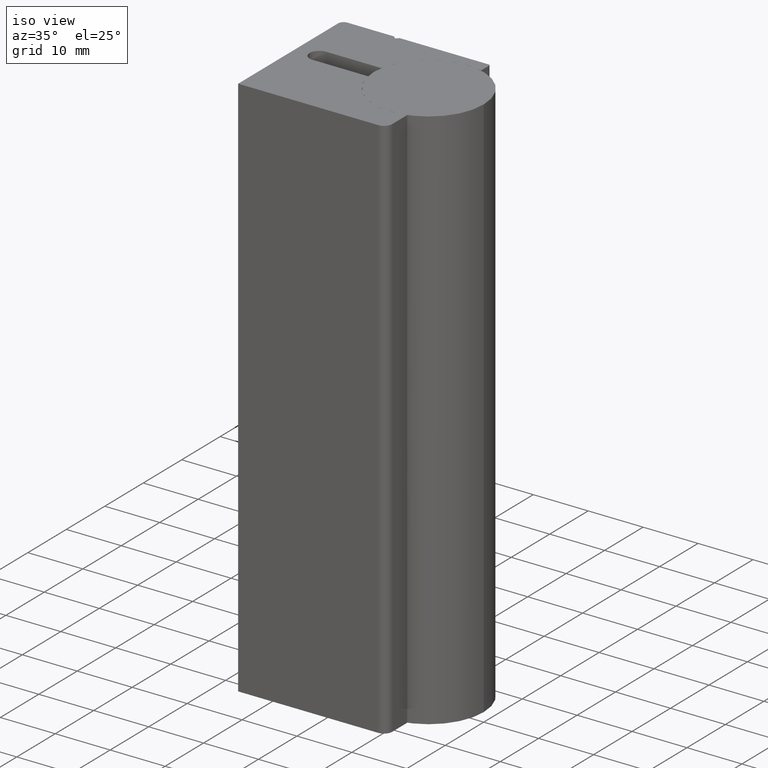
[diagram: clean part render]
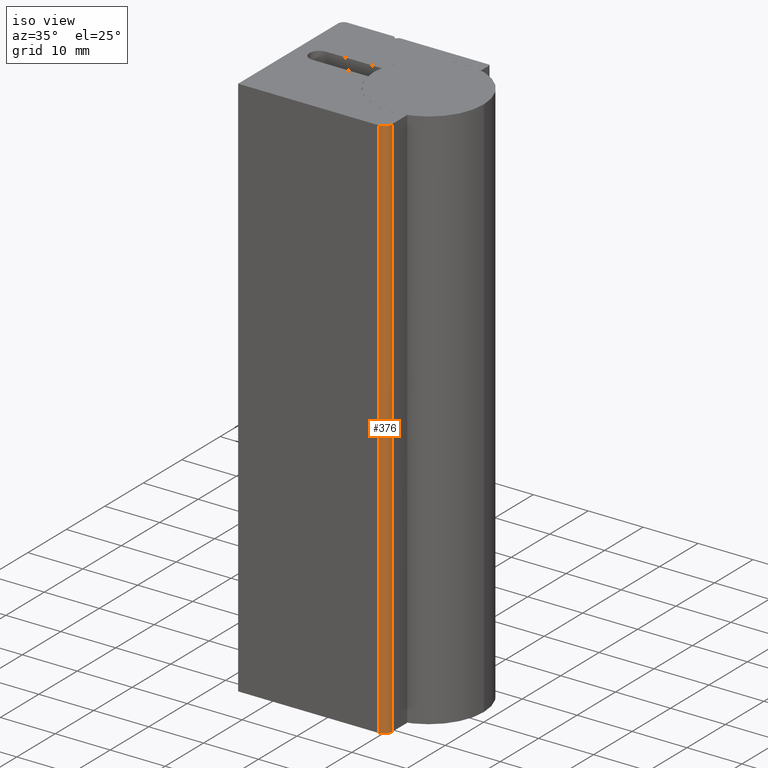
[diagram: same view with one face highlighted and labeled with its STEP entity id]
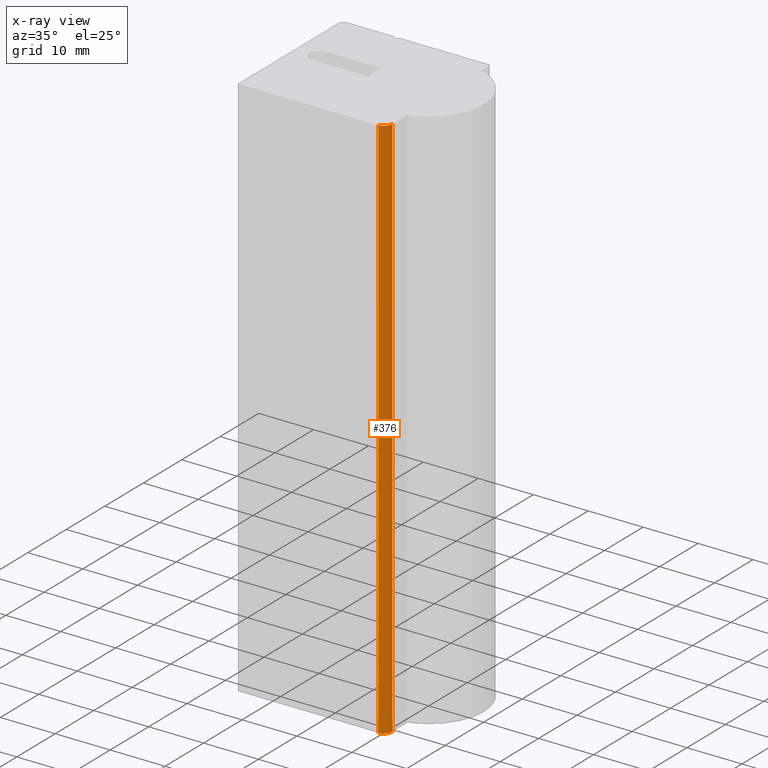
[diagram: x-ray of the same camera — body ghosted, the highlighted face saturated]
A machine part, iso view. The second image highlights one B-rep face of the part: STEP entity #376.
The next image is the same camera in x-ray: the body ghosted, the highlighted face saturated — about 0% of this face is hidden behind the body in this view.
In plain terms, the highlighted cylindrical surface (edge-blend (fillet) strip) has radius 1.5 mm, axis along (0, 0, 1).
Its self-contained STEP definition (entity closure, byte-faithful):
#35=CIRCLE('',#472,1.5);
#36=CIRCLE('',#473,1.5);
#45=CYLINDRICAL_SURFACE('',#471,1.5);
#59=FACE_OUTER_BOUND('',#80,.T.);
#80=EDGE_LOOP('',(#293,#294,#295,#296));
#115=LINE('',#677,#152);
#116=LINE('',#683,#153);
#152=VECTOR('',#557,10.);
#153=VECTOR('',#564,10.);
#186=VERTEX_POINT('',#673);
#187=VERTEX_POINT('',#675);
#188=VERTEX_POINT('',#679);
#189=VERTEX_POINT('',#681);
#231=EDGE_CURVE('',#186,#187,#115,.T.);
#232=EDGE_CURVE('',#188,#186,#35,.T.);
#233=EDGE_CURVE('',#189,#187,#36,.T.);
#234=EDGE_CURVE('',#188,#189,#116,.T.);
#293=ORIENTED_EDGE('',*,*,#232,.T.);
#294=ORIENTED_EDGE('',*,*,#231,.T.);
#295=ORIENTED_EDGE('',*,*,#233,.F.);
#296=ORIENTED_EDGE('',*,*,#234,.F.);
#376=ADVANCED_FACE('',(#59),#45,.T.);
#471=AXIS2_PLACEMENT_3D('',#678,#558,#559);
#472=AXIS2_PLACEMENT_3D('',#680,#560,#561);
#473=AXIS2_PLACEMENT_3D('',#682,#562,#563);
#557=DIRECTION('',(0.,0.,1.));
#558=DIRECTION('center_axis',(0.,0.,1.));
#559=DIRECTION('ref_axis',(2.03540887847946E-15,-1.,0.));
#560=DIRECTION('center_axis',(0.,0.,1.));
#561=DIRECTION('ref_axis',(2.03540887847946E-15,-1.,0.));
#562=DIRECTION('center_axis',(0.,0.,1.));
#563=DIRECTION('ref_axis',(2.03540887847946E-15,-1.,0.));
#564=DIRECTION('',(0.,0.,1.));
#673=CARTESIAN_POINT('',(2.80000000009254,-13.4999999999731,0.));
#675=CARTESIAN_POINT('',(2.80000000009254,-13.4999999999731,100.));
#677=CARTESIAN_POINT('',(2.80000000009254,-13.4999999999731,0.));
#678=CARTESIAN_POINT('Origin',(1.30000000009254,-13.4999999999731,0.));
#679=CARTESIAN_POINT('',(1.30000000009255,-14.9999999999731,0.));
#680=CARTESIAN_POINT('Origin',(1.30000000009254,-13.4999999999731,0.));
#681=CARTESIAN_POINT('',(1.30000000009255,-14.9999999999731,100.));
#682=CARTESIAN_POINT('Origin',(1.30000000009254,-13.4999999999731,100.));
#683=CARTESIAN_POINT('',(1.30000000009255,-14.9999999999731,0.));